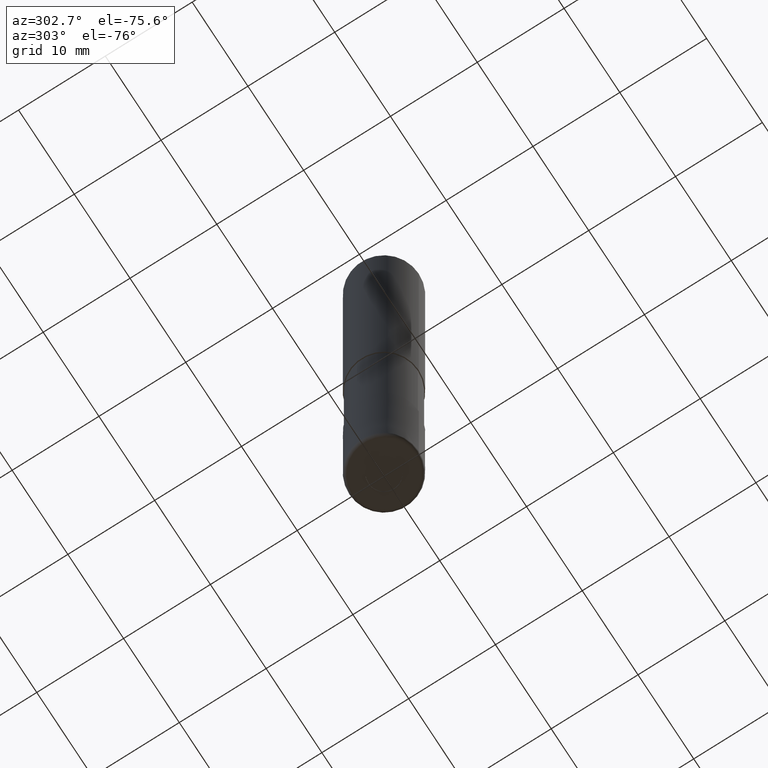
[diagram: clean part render]
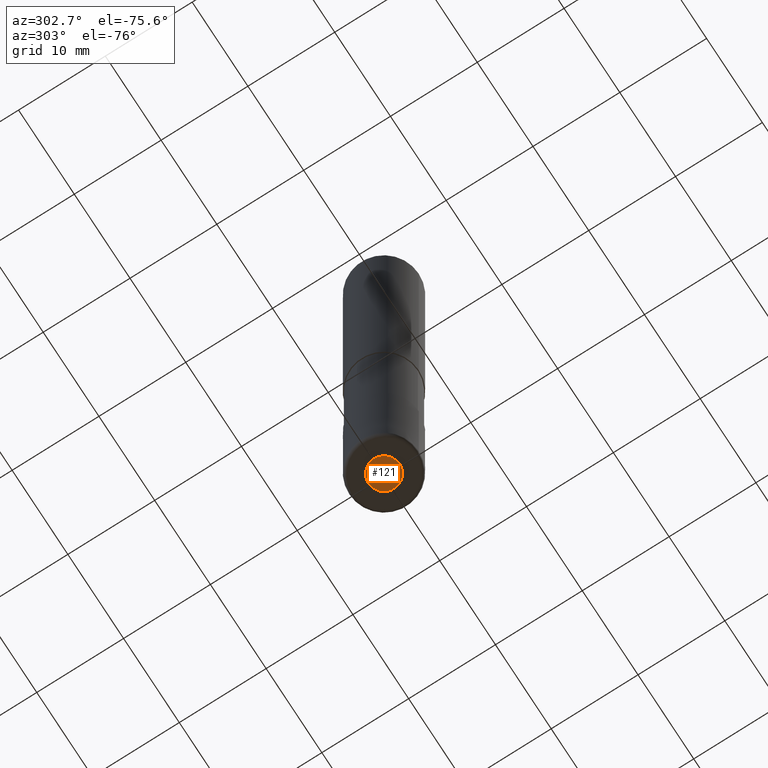
[diagram: same view with one face highlighted and labeled with its STEP entity id]
A machine part, auxiliary view. The second image highlights one B-rep face of the part: STEP entity #121.
In plain terms, the highlighted planar face has unit normal (0, 0, -1).
Its self-contained STEP definition (entity closure, byte-faithful):
#117=VERTEX_POINT('',#304);
#121=ADVANCED_FACE('',(#308),#309,.T.);
#123=VERTEX_POINT('',#311);
#157=EDGE_CURVE('',#123,#117,#348,.T.);
#215=EDGE_CURVE('',#117,#123,#414,.T.);
#304=CARTESIAN_POINT('',(2.20429143688028E-016,-1.8,-69.9));
#308=FACE_OUTER_BOUND('',#513,.T.);
#309=PLANE('',#514);
#311=CARTESIAN_POINT('',(0.0,1.8,-69.9));
#348=CIRCLE('',#563,1.8);
#414=CIRCLE('',#647,1.8);
#513=EDGE_LOOP('',(#749,#750));
#514=AXIS2_PLACEMENT_3D('',#751,#752,#753);
#563=AXIS2_PLACEMENT_3D('',#789,#790,#791);
#647=AXIS2_PLACEMENT_3D('',#881,#882,#883);
#749=ORIENTED_EDGE('',*,*,#157,.T.);
#750=ORIENTED_EDGE('',*,*,#215,.T.);
#751=CARTESIAN_POINT('',(0.0,0.9,-69.9));
#752=DIRECTION('',(0.0,0.0,-1.0));
#753=DIRECTION('',(0.0,1.0,0.0));
#789=CARTESIAN_POINT('',(0.0,0.0,-69.9));
#790=DIRECTION('',(0.0,0.0,-1.0));
#791=DIRECTION('',(0.0,1.0,0.0));
#881=CARTESIAN_POINT('',(0.0,0.0,-69.9));
#882=DIRECTION('',(0.0,0.0,-1.0));
#883=DIRECTION('',(0.0,1.0,0.0));